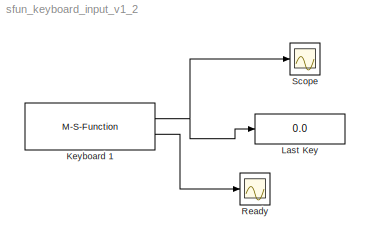
MODEL sfun_keyboard_input_v1_2
KIND model
BLOCK [M-S-Function] Keyboard 1
  FunctionName = sfun_keyboard_input_v1_2b
  Ports = [0, 2]
  SID = 1
BLOCK [Display] Last Key
  Decimation = 1
  Ports = [1]
  SID = 2
BLOCK [Scope] Ready
  DataFormat = StructureWithTime
  Floating = off
  NumInputPorts = 1
  Ports = [1]
  SID = 3
  SampleTime = 0
  SaveName = ScopeData1
  ShowLegends = off
  YMax = 111.3
  YMin = 100.7
BLOCK [Scope] Scope
  DataFormat = StructureWithTime
  Floating = off
  NumInputPorts = 1
  Ports = [1]
  SID = 4
  SampleTime = 0
  ShowLegends = off
  YMax = 111.3
  YMin = 100.7
NET Keyboard 1:1 -> Last Key:1, Scope:1
LINE Keyboard 1:2 -> Ready:1
note: NET lines group one-source signal fan-out (src -> all destinations, sorted); 1:1 wires keep LINE
